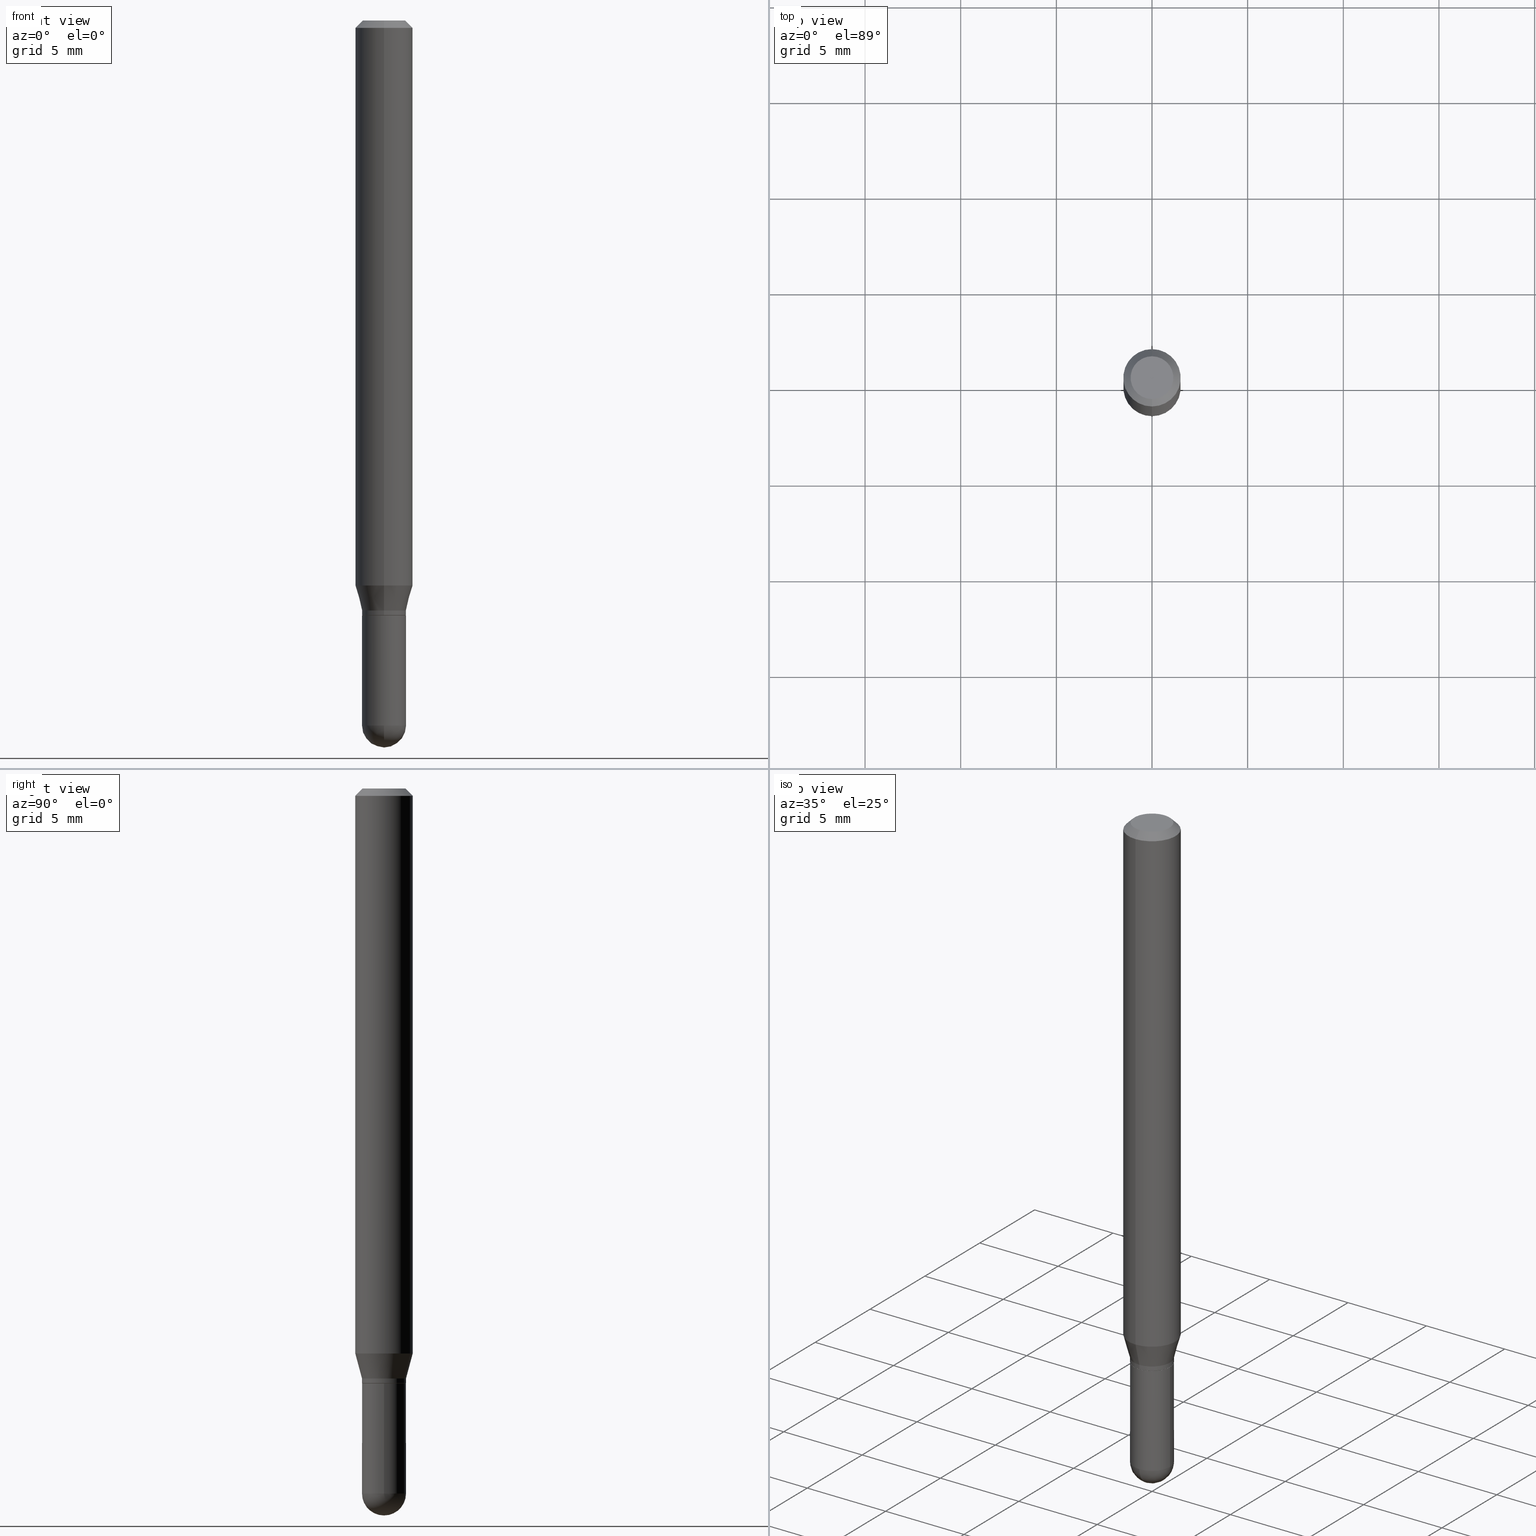
[diagram: canonical four-view strip — front | top / right | iso, engineering-drawing reading convention]
A machine part, canonical four-view strip (front | top / right | iso — engineering-drawing reading convention). The complete STEP part file that produces these views, byte-faithful:
ISO-10303-21;
HEADER;
FILE_DESCRIPTION (( 'STEP AP203' ),
    '1' );
FILE_NAME ('01962.STEP',
    '2024-03-07T19:48:51',
    ( '' ),
    ( '' ),
    'SwSTEP 2.0',
    'SolidWorks 2023',
    '' );
FILE_SCHEMA (( 'CONFIG_CONTROL_DESIGN' ));
ENDSEC;

DATA;
#1 = CYLINDRICAL_SURFACE ( 'NONE', #355, 0.04530000000000006244 ) ;
#2 = ORIENTED_EDGE ( 'NONE', *, *, #279, .T. ) ;
#3 = CARTESIAN_POINT ( 'NONE',  ( -3.536586717851222218E-16, -0.04404999999999999888, 1.299464798432338031E-16 ) ) ;
#4 = LINE ( 'NONE', #275, #257 ) ;
#5 = ORIENTED_EDGE ( 'NONE', *, *, #477, .T. ) ;
#6 = VERTEX_POINT ( 'NONE', #466 ) ;
#7 = CIRCLE ( 'NONE', #70, 0.04530000000000006244 ) ;
#8 = AXIS2_PLACEMENT_3D ( 'NONE', #100, #260, #132 ) ;
#9 = DIRECTION ( 'NONE',  ( 1.839019923739599526E-15, 0.2588190451025248473, 0.9659258262890670910 ) ) ;
#10 = DIRECTION ( 'NONE',  ( 6.982962677686265922E-15, 1.000000000000000000, -3.505890868245046092E-15 ) ) ;
#11 = EDGE_LOOP ( 'NONE', ( #365, #241, #356, #209 ) ) ;
#12 = AXIS2_PLACEMENT_3D ( 'NONE', #253, #219, #415 ) ;
#13 = CC_DESIGN_SECURITY_CLASSIFICATION ( #82, ( #249 ) ) ;
#14 = DIRECTION ( 'NONE',  ( -2.445468806185136597E-29, 3.491481338843145583E-15, 1.000000000000000000 ) ) ;
#15 = CARTESIAN_POINT ( 'NONE',  ( 0.000000000000000000, 0.000000000000000000, 0.000000000000000000 ) ) ;
#16 = ADVANCED_FACE ( 'NONE', ( #248 ), #92, .T. ) ;
#17 = CARTESIAN_POINT ( 'NONE',  ( 2.992922257712919643E-29, -4.273348619864226942E-15, -1.223899999999999988 ) ) ;
#18 = CC_DESIGN_APPROVAL ( #487, ( #323 ) ) ;
#19 = LINE ( 'NONE', #376, #81 ) ;
#20 = CC_DESIGN_PERSON_AND_ORGANIZATION_ASSIGNMENT ( #192, #197, ( #249 ) ) ;
#21 = CARTESIAN_POINT ( 'NONE',  ( 3.547886144013395202E-29, -5.065441126393634337E-15, -1.450799999999999645 ) ) ;
#22 = PLANE ( 'NONE',  #480 ) ;
#23 = EDGE_LOOP ( 'NONE', ( #2, #327, #459, #202 ) ) ;
#24 = DATE_AND_TIME ( #265, #72 ) ;
#25 = VECTOR ( 'NONE', #178, 39.37007874015748143 ) ;
#26 = AXIS2_PLACEMENT_3D ( 'NONE', #15, #14, #419 ) ;
#27 = LINE ( 'NONE', #423, #411 ) ;
#28 = CARTESIAN_POINT ( 'NONE',  ( 2.994232006293080857E-29, -4.274969751279546755E-15, -1.224399999999999933 ) ) ;
#29 = EDGE_CURVE ( 'NONE', #461, #384, #41, .T. ) ;
#30 = VERTEX_POINT ( 'NONE', #469 ) ;
#31 = VECTOR ( 'NONE', #383, 39.37007874015748143 ) ;
#32 = DIRECTION ( 'NONE',  ( -2.445397710362709294E-29, 3.491583152107384375E-15, 1.000000000000000000 ) ) ;
#33 =( NAMED_UNIT ( * ) PLANE_ANGLE_UNIT ( ) SI_UNIT ( $, .RADIAN. ) );
#34 = ORIENTED_EDGE ( 'NONE', *, *, #216, .F. ) ;
#35 = EDGE_CURVE ( 'NONE', #124, #436, #233, .T. ) ;
#36 = DIRECTION ( 'NONE',  ( 1.000000000000000000, -6.982962677686269866E-15, 0.000000000000000000 ) ) ;
#37 = VERTEX_POINT ( 'NONE', #393 ) ;
#38 = DIRECTION ( 'NONE',  ( 1.000000000000000000, -6.982962677686271444E-15, 0.000000000000000000 ) ) ;
#39 = DIRECTION ( 'NONE',  ( 1.000000000000000000, -6.982962677686266711E-15, 4.876176775795936353E-29 ) ) ;
#40 = ORIENTED_EDGE ( 'NONE', *, *, #216, .T. ) ;
#41 = LINE ( 'NONE', #203, #141 ) ;
#42 = VECTOR ( 'NONE', #74, 39.37007874015748143 ) ;
#43 = FACE_OUTER_BOUND ( 'NONE', #76, .T. ) ;
#44 = AXIS2_PLACEMENT_3D ( 'NONE', #188, #297, #138 ) ;
#45 = ORIENTED_EDGE ( 'NONE', *, *, #102, .F. ) ;
#46 = DIRECTION ( 'NONE',  ( -6.982962677686265133E-15, -1.000000000000000000, 3.491583152107384375E-15 ) ) ;
#47 = CARTESIAN_POINT ( 'NONE',  ( 3.599717260347271507E-16, 0.04404999999999999888, -1.776619958574267204E-16 ) ) ;
#48 = EDGE_CURVE ( 'NONE', #390, #424, #206, .T. ) ;
#49 = DIRECTION ( 'NONE',  ( -1.807323732225329350E-15, -0.2588190451025180194, 0.9659258262890689783 ) ) ;
#50 = CARTESIAN_POINT ( 'NONE',  ( 3.668096565544069372E-31, -5.237374728161084524E-17, -0.01500000000000002373 ) ) ;
#51 = DIRECTION ( 'NONE',  ( 6.982962677686265922E-15, 1.000000000000000000, -3.491583152107383980E-15 ) ) ;
#52 = CIRCLE ( 'NONE', #489, 0.04530000000000000693 ) ;
#53 = CARTESIAN_POINT ( 'NONE',  ( 4.195754854663390985E-16, 0.05904999999999999832, -2.061779851319410269E-16 ) ) ;
#54 = EDGE_CURVE ( 'NONE', #30, #369, #334, .T. ) ;
#55 = DIRECTION ( 'NONE',  ( -6.982962677686265922E-15, -1.000000000000000000, 4.626330217890369336E-15 ) ) ;
#56 = PERSON ( 'UNSPECIFIED', 'UNSPECIFIED', 'UNSPECIFIED', ('UNSPECIFIED'), ('UNSPECIFIED'), ('UNSPECIFIED') ) ;
#57 = FACE_OUTER_BOUND ( 'NONE', #488, .T. ) ;
#58 = AXIS2_PLACEMENT_3D ( 'NONE', #433, #465, #230 ) ;
#59 = VECTOR ( 'NONE', #458, 39.37007874015748143 ) ;
#60 = LOCAL_TIME ( 14, 48, 51.00000000000000000, #269 ) ;
#61 = DIRECTION ( 'NONE',  ( -1.000000000000000000, 6.982962677686265922E-15, -4.876176775795935793E-29 ) ) ;
#62 = EDGE_LOOP ( 'NONE', ( #504, #40, #214, #406 ) ) ;
#63 = EDGE_CURVE ( 'NONE', #342, #340, #322, .T. ) ;
#64 = DIRECTION ( 'NONE',  ( -2.445397710362709294E-29, 3.491583152107384375E-15, 1.000000000000000000 ) ) ;
#65 = ORIENTED_EDGE ( 'NONE', *, *, #242, .F. ) ;
#66 = APPROVAL_DATE_TIME ( #189, #487 ) ;
#67 = CARTESIAN_POINT ( 'NONE',  ( 2.994144956568101133E-29, -4.275094411440280753E-15, -1.224399999999999933 ) ) ;
#68 = FACE_OUTER_BOUND ( 'NONE', #213, .T. ) ;
#69 = APPROVAL_ROLE ( '' ) ;
#70 = AXIS2_PLACEMENT_3D ( 'NONE', #128, #123, #324 ) ;
#71 = AXIS2_PLACEMENT_3D ( 'NONE', #398, #32, #282 ) ;
#72 = LOCAL_TIME ( 14, 48, 51.00000000000000000, #155 ) ;
#73 = VERTEX_POINT ( 'NONE', #482 ) ;
#74 = DIRECTION ( 'NONE',  ( -2.445397710362709294E-29, 3.491583152107383980E-15, 1.000000000000000000 ) ) ;
#75 = ADVANCED_FACE ( 'NONE', ( #325 ), #484, .T. ) ;
#76 = EDGE_LOOP ( 'NONE', ( #199, #283, #434, #396 ) ) ;
#77 = COORDINATED_UNIVERSAL_TIME_OFFSET ( 5, 0, .BEHIND. ) ;
#78 = EDGE_LOOP ( 'NONE', ( #196, #483, #226, #183, #303 ) ) ;
#79 = CARTESIAN_POINT ( 'NONE',  ( 0.000000000000000000, 0.000000000000000000, 0.000000000000000000 ) ) ;
#80 = DIRECTION ( 'NONE',  ( -6.982962677686265133E-15, -1.000000000000000000, 3.015284761218829434E-15 ) ) ;
#81 = VECTOR ( 'NONE', #420, 39.37007874015748143 ) ;
#82 = SECURITY_CLASSIFICATION ( '', '', #463 ) ;
#83 = CARTESIAN_POINT ( 'NONE',  ( 3.544012240723413228E-29, -5.070988776393773069E-15, -1.450800000000000090 ) ) ;
#84 = ORIENTED_EDGE ( 'NONE', *, *, #332, .F. ) ;
#85 = DIRECTION ( 'NONE',  ( -6.982962677686265922E-15, -1.000000000000000000, 6.030569522437688845E-15 ) ) ;
#86 = CARTESIAN_POINT ( 'NONE',  ( 3.544012240723413228E-29, -5.070988776393773069E-15, -1.450800000000000090 ) ) ;
#87 = FACE_OUTER_BOUND ( 'NONE', #170, .T. ) ;
#88 = CARTESIAN_POINT ( 'NONE',  ( 0.000000000000000000, 0.000000000000000000, 0.000000000000000000 ) ) ;
#89 = CONICAL_SURFACE ( 'NONE', #447, 0.04530000000000006244, 0.2617993877991501850 ) ;
#90 = EDGE_CURVE ( 'NONE', #340, #436, #418, .T. ) ;
#91 = LOCAL_TIME ( 14, 48, 51.00000000000000000, #237 ) ;
#92 = SPHERICAL_SURFACE ( 'NONE', #372, 0.04529999999999984039 ) ;
#93 = DIRECTION ( 'NONE',  ( 1.000000000000000000, -6.982962677686265922E-15, 4.883557194083112340E-29 ) ) ;
#94 = LINE ( 'NONE', #53, #25 ) ;
#95 = DIRECTION ( 'NONE',  ( -6.982962677686266711E-15, -1.000000000000000000, 3.048937492928865273E-15 ) ) ;
#96 = AXIS2_PLACEMENT_3D ( 'NONE', #476, #64, #315 ) ;
#97 = AXIS2_PLACEMENT_3D ( 'NONE', #79, #387, #394 ) ;
#98 = FACE_OUTER_BOUND ( 'NONE', #498, .T. ) ;
#99 = MANIFOLD_SOLID_BREP ( 'Body-Move/Copy2[2]', #506 ) ;
#100 = CARTESIAN_POINT ( 'NONE',  ( 5.834170680494128639E-46, -8.330134590463305896E-32, -2.385775800709646480E-17 ) ) ;
#101 = DIRECTION ( 'NONE',  ( -4.851104656540964275E-15, -0.7071067811865500152, -0.7071067811865450192 ) ) ;
#102 = EDGE_CURVE ( 'NONE', #147, #166, #471, .T. ) ;
#103 = APPLICATION_CONTEXT ( 'configuration controlled 3d designs of mechanical parts and assemblies' ) ;
#104 = AXIS2_PLACEMENT_3D ( 'NONE', #67, #264, #425 ) ;
#105 = DIRECTION ( 'NONE',  ( 7.105427357600999492E-15, 1.000000000000000000, 0.000000000000000000 ) ) ;
#106 = ORIENTED_EDGE ( 'NONE', *, *, #410, .T. ) ;
#107 = PERSON_AND_ORGANIZATION ( #56, #287 ) ;
#108 = DIRECTION ( 'NONE',  ( -2.445468806185136597E-29, 3.491481338843145583E-15, 1.000000000000000000 ) ) ;
#109 = APPROVAL_STATUS ( 'not_yet_approved' ) ;
#110 = CARTESIAN_POINT ( 'NONE',  ( 3.200995024599552074E-16, 0.04479999999999572519, -1.224400000000000155 ) ) ;
#111 = ORIENTED_EDGE ( 'NONE', *, *, #165, .T. ) ;
#112 = ORIENTED_EDGE ( 'NONE', *, *, #175, .F. ) ;
#113 = DATE_TIME_ROLE ( 'classification_date' ) ;
#114 = AXIS2_PLACEMENT_3D ( 'NONE', #370, #317, #448 ) ;
#115 = AXIS2_PLACEMENT_3D ( 'NONE', #83, #302, #105 ) ;
#116 = CARTESIAN_POINT ( 'NONE',  ( -3.163282092991585987E-16, -0.04530000000000430210, -1.214099999999999957 ) ) ;
#117 = ORIENTED_EDGE ( 'NONE', *, *, #403, .T. ) ;
#118 = PERSON_AND_ORGANIZATION ( #56, #287 ) ;
#119 = ORIENTED_EDGE ( 'NONE', *, *, #472, .T. ) ;
#120 = DIRECTION ( 'NONE',  ( -2.445468806185136597E-29, 3.491481338843145583E-15, 1.000000000000000000 ) ) ;
#121 = AXIS2_PLACEMENT_3D ( 'NONE', #28, #191, #38 ) ;
#122 = CIRCLE ( 'NONE', #186, 0.04530000000000000693 ) ;
#123 = DIRECTION ( 'NONE',  ( -2.445397710362709294E-29, 3.491583152107384375E-15, 1.000000000000000000 ) ) ;
#124 = VERTEX_POINT ( 'NONE', #462 ) ;
#125 = ORIENTED_EDGE ( 'NONE', *, *, #242, .T. ) ;
#126 = ORIENTED_EDGE ( 'NONE', *, *, #252, .F. ) ;
#127 = ADVANCED_FACE ( 'NONE', ( #68 ), #479, .T. ) ;
#128 = CARTESIAN_POINT ( 'NONE',  ( 2.992922257712919643E-29, -4.273348619864226942E-15, -1.223899999999999988 ) ) ;
#129 = ORIENTED_EDGE ( 'NONE', *, *, #235, .T. ) ;
#130 = AXIS2_PLACEMENT_3D ( 'NONE', #449, #378, #495 ) ;
#131 = EDGE_CURVE ( 'NONE', #384, #342, #348, .T. ) ;
#132 = DIRECTION ( 'NONE',  ( -6.982962677686265133E-15, -1.000000000000000000, 3.491583152107384375E-15 ) ) ;
#133 = CARTESIAN_POINT ( 'NONE',  ( 4.195754854663673989E-16, 0.05904999999999592519, -1.162784301395928699 ) ) ;
#134 = CIRCLE ( 'NONE', #96, 0.05904999999999999832 ) ;
#135 = DIRECTION ( 'NONE',  ( -2.445397710362709294E-29, 3.491583152107384375E-15, 1.000000000000000000 ) ) ;
#136 = CARTESIAN_POINT ( 'NONE',  ( -0.04530000000000000693, 3.218758592993254334E-16, -2.228277595885472564E-30 ) ) ;
#137 = ADVANCED_FACE ( 'NONE', ( #409 ), #478, .T. ) ;
#138 = DIRECTION ( 'NONE',  ( -6.982962677686265922E-15, -1.000000000000000000, 3.505890868245046092E-15 ) ) ;
#139 = ORIENTED_EDGE ( 'NONE', *, *, #63, .F. ) ;
#140 = VERTEX_POINT ( 'NONE', #3 ) ;
#141 = VECTOR ( 'NONE', #408, 39.37007874015748143 ) ;
#142 = AXIS2_PLACEMENT_3D ( 'NONE', #17, #135, #294 ) ;
#143 = CC_DESIGN_DATE_AND_TIME_ASSIGNMENT ( #430, #392, ( #323 ) ) ;
#144 =( LENGTH_UNIT ( ) NAMED_UNIT ( * ) SI_UNIT ( $, .METRE. ) );
#145 = APPROVAL_DATE_TIME ( #305, #501 ) ;
#146 = CARTESIAN_POINT ( 'NONE',  ( -0.04529999999999999999, -4.348329579537264718E-15, -1.224399999999999933 ) ) ;
#147 = VERTEX_POINT ( 'NONE', #157 ) ;
#148 = VERTEX_POINT ( 'NONE', #47 ) ;
#149 = APPLICATION_PROTOCOL_DEFINITION ( 'international standard', 'config_control_design', 1994, #486 ) ;
#150 = ORIENTED_EDGE ( 'NONE', *, *, #328, .T. ) ;
#151 = CIRCLE ( 'NONE', #373, 0.04479999999999999954 ) ;
#152 = APPROVAL_PERSON_ORGANIZATION ( #351, #353, #346 ) ;
#153 = ORIENTED_EDGE ( 'NONE', *, *, #341, .T. ) ;
#154 = ADVANCED_FACE ( 'NONE', ( #164 ), #288, .T. ) ;
#155 = COORDINATED_UNIVERSAL_TIME_OFFSET ( 5, 0, .BEHIND. ) ;
#156 = DIRECTION ( 'NONE',  ( -6.982962677686265133E-15, -1.000000000000000000, 3.491583152107384375E-15 ) ) ;
#157 = CARTESIAN_POINT ( 'NONE',  ( -3.128367279603147534E-16, -0.04480000000000427390, -1.224399999999999711 ) ) ;
#158 = CARTESIAN_POINT ( 'NONE',  ( 3.218758592993555581E-16, 0.04529999999999576726, -1.223899999999999988 ) ) ;
#159 = CLOSED_SHELL ( 'NONE', ( #154, #16, #481, #137, #259 ) ) ;
#160 = AXIS2_PLACEMENT_3D ( 'NONE', #50, #333, #172 ) ;
#161 = ORIENTED_EDGE ( 'NONE', *, *, #460, .T. ) ;
#162 = DIRECTION ( 'NONE',  ( 1.000000000000000000, -6.982962677686269866E-15, 0.000000000000000000 ) ) ;
#163 = APPROVAL_PERSON_ORGANIZATION ( #107, #501, #69 ) ;
#164 = FACE_OUTER_BOUND ( 'NONE', #78, .T. ) ;
#165 = EDGE_CURVE ( 'NONE', #166, #384, #7, .T. ) ;
#166 = VERTEX_POINT ( 'NONE', #204 ) ;
#167 = CARTESIAN_POINT ( 'NONE',  ( 3.218758592993554101E-16, 0.04529999999999581584, -1.214100000000000179 ) ) ;
#168 = CARTESIAN_POINT ( 'NONE',  ( 3.544012240723413228E-29, -5.070988776393773069E-15, -1.450800000000000090 ) ) ;
#169 = ORIENTED_EDGE ( 'NONE', *, *, #35, .T. ) ;
#170 = EDGE_LOOP ( 'NONE', ( #84, #161, #413, #240 ) ) ;
#171 = CC_DESIGN_PERSON_AND_ORGANIZATION_ASSIGNMENT ( #435, #400, ( #82 ) ) ;
#172 = DIRECTION ( 'NONE',  ( 6.982962677686265922E-15, 1.000000000000000000, -3.505890868245046092E-15 ) ) ;
#173 = CIRCLE ( 'NONE', #8, 0.04404999999999999888 ) ;
#174 = DIRECTION ( 'NONE',  ( -6.982962677686265133E-15, -1.000000000000000000, 3.015284761218829434E-15 ) ) ;
#175 = EDGE_CURVE ( 'NONE', #424, #390, #364, .T. ) ;
#176 = CARTESIAN_POINT ( 'NONE',  ( 2.968957360151365244E-29, -4.239131104973575246E-15, -1.214099999999999957 ) ) ;
#177 = CARTESIAN_POINT ( 'NONE',  ( 3.075995059520799729E-16, 0.04404999999999999888, -1.657331168538785095E-16 ) ) ;
#178 = DIRECTION ( 'NONE',  ( -2.445397710362709294E-29, 3.491583152107383980E-15, 1.000000000000000000 ) ) ;
#179 = PRODUCT_DEFINITION_SHAPE ( 'NONE', 'NONE',  #323 ) ;
#180 = DIRECTION ( 'NONE',  ( 1.000000000000000000, -6.982962677686269866E-15, 0.000000000000000000 ) ) ;
#181 = ORIENTED_EDGE ( 'NONE', *, *, #279, .F. ) ;
#182 = FACE_OUTER_BOUND ( 'NONE', #23, .T. ) ;
#183 = ORIENTED_EDGE ( 'NONE', *, *, #422, .F. ) ;
#184 = AXIS2_PLACEMENT_3D ( 'NONE', #363, #93, #85 ) ;
#185 = APPROVAL_STATUS ( 'not_yet_approved' ) ;
#186 = AXIS2_PLACEMENT_3D ( 'NONE', #443, #108, #262 ) ;
#187 = LOCAL_TIME ( 14, 48, 51.00000000000000000, #77 ) ;
#188 = CARTESIAN_POINT ( 'NONE',  ( 3.668096565544069372E-31, -5.237374728161084524E-17, -0.01500000000000002373 ) ) ;
#189 = DATE_AND_TIME ( #473, #187 ) ;
#190 = CC_DESIGN_PERSON_AND_ORGANIZATION_ASSIGNMENT ( #118, #397, ( #323 ) ) ;
#191 = DIRECTION ( 'NONE',  ( -2.445468806185136597E-29, 3.491481338843145583E-15, 1.000000000000000000 ) ) ;
#192 = PERSON_AND_ORGANIZATION ( #56, #287 ) ;
#193 = ORIENTED_EDGE ( 'NONE', *, *, #403, .F. ) ;
#194 = CIRCLE ( 'NONE', #207, 0.04404999999999999888 ) ;
#195 = ADVANCED_FACE ( 'NONE', ( #43 ), #367, .T. ) ;
#196 = ORIENTED_EDGE ( 'NONE', *, *, #54, .T. ) ;
#197 = PERSON_AND_ORGANIZATION_ROLE ( 'design_supplier' ) ;
#198 = LINE ( 'NONE', #428, #31 ) ;
#199 = ORIENTED_EDGE ( 'NONE', *, *, #300, .T. ) ;
#200 = DIRECTION ( 'NONE',  ( 2.445397710362709294E-29, -3.491583152107384375E-15, -1.000000000000000000 ) ) ;
#201 = FACE_OUTER_BOUND ( 'NONE', #446, .T. ) ;
#202 = ORIENTED_EDGE ( 'NONE', *, *, #35, .F. ) ;
#203 = CARTESIAN_POINT ( 'NONE',  ( 3.183231456205547581E-16, 0.04479999999999572519, -1.224400000000000155 ) ) ;
#204 = CARTESIAN_POINT ( 'NONE',  ( -3.163282092991584508E-16, -0.04530000000000435761, -1.223899999999999766 ) ) ;
#205 = ADVANCED_FACE ( 'NONE', ( #357 ), #1, .T. ) ;
#206 = CIRCLE ( 'NONE', #121, 0.04529999999999999999 ) ;
#207 = AXIS2_PLACEMENT_3D ( 'NONE', #440, #319, #156 ) ;
#208 = ORIENTED_EDGE ( 'NONE', *, *, #494, .T. ) ;
#209 = ORIENTED_EDGE ( 'NONE', *, *, #410, .F. ) ;
#210 = CC_DESIGN_APPROVAL ( #353, ( #82 ) ) ;
#211 = CARTESIAN_POINT ( 'NONE',  ( 0.000000000000000000, 0.000000000000000000, 0.000000000000000000 ) ) ;
#212 = ADVANCED_FACE ( 'NONE', ( #87 ), #255, .T. ) ;
#213 = EDGE_LOOP ( 'NONE', ( #129, #389, #431, #45 ) ) ;
#214 = ORIENTED_EDGE ( 'NONE', *, *, #472, .F. ) ;
#215 = PLANE ( 'NONE',  #218 ) ;
#216 = EDGE_CURVE ( 'NONE', #281, #37, #270, .T. ) ;
#217 = DIRECTION ( 'NONE',  ( -6.982962677686265922E-15, -1.000000000000000000, 3.491583152107383980E-15 ) ) ;
#218 = AXIS2_PLACEMENT_3D ( 'NONE', #455, #421, #217 ) ;
#219 = DIRECTION ( 'NONE',  ( -2.445397710362709294E-29, 3.491583152107384375E-15, 1.000000000000000000 ) ) ;
#220 = CARTESIAN_POINT ( 'NONE',  ( 2.994144956568101133E-29, -4.275094411440280753E-15, -1.224399999999999933 ) ) ;
#221 = ADVANCED_FACE ( 'NONE', ( #490 ), #289, .T. ) ;
#222 = DIRECTION ( 'NONE',  ( -2.445397710362709294E-29, 3.491583152107384375E-15, 1.000000000000000000 ) ) ;
#223 = AXIS2_PLACEMENT_3D ( 'NONE', #261, #352, #429 ) ;
#224 = AXIS2_PLACEMENT_3D ( 'NONE', #331, #371, #55 ) ;
#225 = DIRECTION ( 'NONE',  ( 2.438088387897960049E-29, -3.491481338843145188E-15, -1.000000000000000000 ) ) ;
#226 = ORIENTED_EDGE ( 'NONE', *, *, #48, .F. ) ;
#227 = CARTESIAN_POINT ( 'NONE',  ( 3.547886144013395202E-29, -5.065441126393634337E-15, -1.450799999999999645 ) ) ;
#228 = EDGE_LOOP ( 'NONE', ( #111, #470, #181, #65 ) ) ;
#229 = PERSON_AND_ORGANIZATION ( #56, #287 ) ;
#230 = DIRECTION ( 'NONE',  ( -6.982962677686266711E-15, -1.000000000000000000, 3.048937492928865273E-15 ) ) ;
#231 = SHAPE_DEFINITION_REPRESENTATION ( #179, #475 ) ;
#232 = CIRCLE ( 'NONE', #142, 0.04530000000000006244 ) ;
#233 = LINE ( 'NONE', #116, #345 ) ;
#234 = APPROVAL_DATE_TIME ( #500, #353 ) ;
#235 = EDGE_CURVE ( 'NONE', #147, #461, #299, .T. ) ;
#236 = ORIENTED_EDGE ( 'NONE', *, *, #29, .F. ) ;
#237 = COORDINATED_UNIVERSAL_TIME_OFFSET ( 5, 0, .BEHIND. ) ;
#238 = AXIS2_PLACEMENT_3D ( 'NONE', #168, #326, #485 ) ;
#239 = LINE ( 'NONE', #385, #59 ) ;
#240 = ORIENTED_EDGE ( 'NONE', *, *, #494, .F. ) ;
#241 = ORIENTED_EDGE ( 'NONE', *, *, #90, .T. ) ;
#242 = EDGE_CURVE ( 'NONE', #166, #124, #19, .T. ) ;
#243 = UNCERTAINTY_MEASURE_WITH_UNIT (LENGTH_MEASURE( 1.000000000000000082E-05 ), #402, 'distance_accuracy_value', 'NONE');
#244 =( NAMED_UNIT ( * ) SI_UNIT ( $, .STERADIAN. ) SOLID_ANGLE_UNIT ( ) );
#245 = ORIENTED_EDGE ( 'NONE', *, *, #422, .T. ) ;
#246 = CARTESIAN_POINT ( 'NONE',  ( 3.668096565544069372E-31, -5.237374728161084524E-17, -0.01500000000000002373 ) ) ;
#247 = AXIS2_PLACEMENT_3D ( 'NONE', #343, #306, #80 ) ;
#248 = FACE_OUTER_BOUND ( 'NONE', #386, .T. ) ;
#249 = PRODUCT_DEFINITION_FORMATION_WITH_SPECIFIED_SOURCE ( 'ANY', '', #254, .NOT_KNOWN. ) ;
#250 = DIRECTION ( 'NONE',  ( -6.982962677686265922E-15, -1.000000000000000000, 6.030569522437688845E-15 ) ) ;
#251 = CARTESIAN_POINT ( 'NONE',  ( 2.968957360151365244E-29, -4.239131104973575246E-15, -1.214099999999999957 ) ) ;
#252 = EDGE_CURVE ( 'NONE', #369, #424, #456, .T. ) ;
#253 = CARTESIAN_POINT ( 'NONE',  ( 2.968957360151365244E-29, -4.239131104973575246E-15, -1.214099999999999957 ) ) ;
#254 = PRODUCT ( '01962', '01962', '', ( #274 ) ) ;
#255 = CONICAL_SURFACE ( 'NONE', #457, 0.05904999999999999832, 0.7853981633974483900 ) ;
#256 = DIRECTION ( 'NONE',  ( -2.445468806185136877E-29, 3.491481338843145188E-15, 1.000000000000000000 ) ) ;
#257 = VECTOR ( 'NONE', #388, 39.37007874015748143 ) ;
#258 = DIRECTION ( 'NONE',  ( -6.982962677686265133E-15, -1.000000000000000000, 3.015284761218829434E-15 ) ) ;
#259 = ADVANCED_FACE ( 'NONE', ( #380 ), #492, .T. ) ;
#260 = DIRECTION ( 'NONE',  ( -2.445397710362709294E-29, 3.491583152107384375E-15, 1.000000000000000000 ) ) ;
#261 = CARTESIAN_POINT ( 'NONE',  ( 2.843470068279305936E-29, -4.059958076288978365E-15, -1.162784301395928255 ) ) ;
#262 = DIRECTION ( 'NONE',  ( 1.000000000000000000, -6.982962677686269866E-15, 0.000000000000000000 ) ) ;
#263 = VECTOR ( 'NONE', #256, 39.37007874015748143 ) ;
#264 = DIRECTION ( 'NONE',  ( -2.445397710362709294E-29, 3.491583152107384375E-15, 1.000000000000000000 ) ) ;
#265 = CALENDAR_DATE ( 2024, 7, 3 ) ;
#266 = CALENDAR_DATE ( 2024, 7, 3 ) ;
#267 = ORIENTED_EDGE ( 'NONE', *, *, #460, .F. ) ;
#268 = VECTOR ( 'NONE', #9, 39.37007874015748143 ) ;
#269 = COORDINATED_UNIVERSAL_TIME_OFFSET ( 5, 0, .BEHIND. ) ;
#270 = CIRCLE ( 'NONE', #238, 0.04529999999999984039 ) ;
#271 = EDGE_CURVE ( 'NONE', #340, #6, #94, .T. ) ;
#272 = EDGE_LOOP ( 'NONE', ( #236, #150, #445, #307 ) ) ;
#273 = CARTESIAN_POINT ( 'NONE',  ( -3.128367279603147534E-16, -0.04480000000000427390, -1.224399999999999711 ) ) ;
#274 = MECHANICAL_CONTEXT ( 'NONE', #486, 'mechanical' ) ;
#275 = CARTESIAN_POINT ( 'NONE',  ( 4.123439461173743285E-16, 0.05904999999999994975, -0.01500000000000023016 ) ) ;
#276 = ORIENTED_EDGE ( 'NONE', *, *, #309, .T. ) ;
#277 = DIRECTION ( 'NONE',  ( -6.982962677686265133E-15, -1.000000000000000000, 3.491583152107384375E-15 ) ) ;
#278 = DIRECTION ( 'NONE',  ( -2.445468806185136597E-29, 3.491481338843145583E-15, 1.000000000000000000 ) ) ;
#279 = EDGE_CURVE ( 'NONE', #124, #342, #318, .T. ) ;
#280 = AXIS2_PLACEMENT_3D ( 'NONE', #227, #120, #36 ) ;
#281 = VERTEX_POINT ( 'NONE', #454 ) ;
#282 = DIRECTION ( 'NONE',  ( -6.982962677686265922E-15, -1.000000000000000000, 3.491583152107383980E-15 ) ) ;
#283 = ORIENTED_EDGE ( 'NONE', *, *, #271, .T. ) ;
#284 = CARTESIAN_POINT ( 'NONE',  ( 0.000000000000000000, 0.000000000000000000, 0.000000000000000000 ) ) ;
#285 = ORIENTED_EDGE ( 'NONE', *, *, #309, .F. ) ;
#286 = ORIENTED_EDGE ( 'NONE', *, *, #235, .F. ) ;
#287 = ORGANIZATION ( 'UNSPECIFIED', 'UNSPECIFIED', '' ) ;
#288 = CYLINDRICAL_SURFACE ( 'NONE', #292, 0.04530000000000000693 ) ;
#289 = CYLINDRICAL_SURFACE ( 'NONE', #130, 0.05904999999999999832 ) ;
#290 = FACE_OUTER_BOUND ( 'NONE', #444, .T. ) ;
#291 = ADVANCED_FACE ( 'NONE', ( #57 ), #89, .T. ) ;
#292 = AXIS2_PLACEMENT_3D ( 'NONE', #211, #329, #39 ) ;
#293 = AXIS2_PLACEMENT_3D ( 'NONE', #176, #496, #174 ) ;
#294 = DIRECTION ( 'NONE',  ( -6.982962677686265133E-15, -1.000000000000000000, 3.015284761218829434E-15 ) ) ;
#295 = FACE_OUTER_BOUND ( 'NONE', #474, .T. ) ;
#296 = DIRECTION ( 'NONE',  ( -2.445397710362709294E-29, 3.491583152107384375E-15, 1.000000000000000000 ) ) ;
#297 = DIRECTION ( 'NONE',  ( -2.445397710362709294E-29, 3.491583152107384375E-15, 1.000000000000000000 ) ) ;
#298 = ORIENTED_EDGE ( 'NONE', *, *, #90, .F. ) ;
#299 = CIRCLE ( 'NONE', #453, 0.04479999999999999954 ) ;
#300 = EDGE_CURVE ( 'NONE', #436, #340, #401, .T. ) ;
#301 = CC_DESIGN_APPROVAL ( #501, ( #249 ) ) ;
#302 = DIRECTION ( 'NONE',  ( 1.000000000000000000, -7.105427357601001070E-15, 4.926315508542082329E-29 ) ) ;
#303 = ORIENTED_EDGE ( 'NONE', *, *, #439, .T. ) ;
#304 = DIRECTION ( 'NONE',  ( -4.937700262164674260E-15, -0.7071067811865632269, 0.7071067811865319186 ) ) ;
#305 = DATE_AND_TIME ( #467, #91 ) ;
#306 = DIRECTION ( 'NONE',  ( -2.445397710362709294E-29, 3.491583152107384375E-15, 1.000000000000000000 ) ) ;
#307 = ORIENTED_EDGE ( 'NONE', *, *, #341, .F. ) ;
#308 = PERSON_AND_ORGANIZATION_ROLE ( 'design_owner' ) ;
#309 = EDGE_CURVE ( 'NONE', #342, #124, #432, .T. ) ;
#310 = DIRECTION ( 'NONE',  ( 1.000000000000000000, -6.982962677686265922E-15, 4.883557194083112340E-29 ) ) ;
#311 = EDGE_LOOP ( 'NONE', ( #126, #119, #5, #245, #112 ) ) ;
#312 = PERSON_AND_ORGANIZATION ( #56, #287 ) ;
#313 = CC_DESIGN_PERSON_AND_ORGANIZATION_ASSIGNMENT ( #229, #505, ( #249 ) ) ;
#314 = DIRECTION ( 'NONE',  ( -2.445397710362709294E-29, 3.491583152107384375E-15, 1.000000000000000000 ) ) ;
#315 = DIRECTION ( 'NONE',  ( -6.982962677686265922E-15, -1.000000000000000000, 3.505890868245046092E-15 ) ) ;
#316 = EDGE_LOOP ( 'NONE', ( #405, #153, #125, #285 ) ) ;
#317 = DIRECTION ( 'NONE',  ( -2.445468806185136597E-29, 3.491481338843145583E-15, 1.000000000000000000 ) ) ;
#318 = CIRCLE ( 'NONE', #293, 0.04530000000000006244 ) ;
#319 = DIRECTION ( 'NONE',  ( -2.445397710362709294E-29, 3.491583152107384375E-15, 1.000000000000000000 ) ) ;
#320 =( GEOMETRIC_REPRESENTATION_CONTEXT ( 3 ) GLOBAL_UNCERTAINTY_ASSIGNED_CONTEXT ( ( #243 ) ) GLOBAL_UNIT_ASSIGNED_CONTEXT ( ( #402, #33, #244 ) ) REPRESENTATION_CONTEXT ( 'NONE', 'WORKASPACE' ) );
#321 = ORIENTED_EDGE ( 'NONE', *, *, #332, .T. ) ;
#322 = LINE ( 'NONE', #167, #268 ) ;
#323 = PRODUCT_DEFINITION ( 'UNKNOWN', '', #249, #416 ) ;
#324 = DIRECTION ( 'NONE',  ( -6.982962677686265133E-15, -1.000000000000000000, 3.015284761218829434E-15 ) ) ;
#325 = FACE_OUTER_BOUND ( 'NONE', #316, .T. ) ;
#326 = DIRECTION ( 'NONE',  ( -1.000000000000000000, 6.982962677686265922E-15, -4.883557194083112340E-29 ) ) ;
#327 = ORIENTED_EDGE ( 'NONE', *, *, #63, .T. ) ;
#328 = EDGE_CURVE ( 'NONE', #461, #147, #151, .T. ) ;
#329 = DIRECTION ( 'NONE',  ( -2.445468806185136597E-29, 3.491481338843145583E-15, 1.000000000000000000 ) ) ;
#330 = CONICAL_SURFACE ( 'NONE', #104, 0.04479999999999999954, 0.7853981633974739252 ) ;
#331 = CARTESIAN_POINT ( 'NONE',  ( 2.843470068279305936E-29, -4.059958076288978365E-15, -1.162784301395928255 ) ) ;
#332 = EDGE_CURVE ( 'NONE', #140, #148, #173, .T. ) ;
#333 = DIRECTION ( 'NONE',  ( 2.445397710362709294E-29, -3.491583152107384375E-15, -1.000000000000000000 ) ) ;
#334 = CIRCLE ( 'NONE', #452, 0.04530000000000000693 ) ;
#335 = CIRCLE ( 'NONE', #115, 0.04529999999999984039 ) ;
#336 = DIRECTION ( 'NONE',  ( 2.445397710362709294E-29, -3.491583152107383980E-15, -1.000000000000000000 ) ) ;
#337 = ADVANCED_FACE ( 'NONE', ( #290 ), #379, .T. ) ;
#338 = CARTESIAN_POINT ( 'NONE',  ( 3.707256723828616017E-16, 0.04529999999999581584, -1.214100000000000179 ) ) ;
#339 = CARTESIAN_POINT ( 'NONE',  ( 0.04530000000000000693, -4.986533648135779220E-15, -1.450799999999999645 ) ) ;
#340 = VERTEX_POINT ( 'NONE', #133 ) ;
#341 = EDGE_CURVE ( 'NONE', #384, #166, #232, .T. ) ;
#342 = VERTEX_POINT ( 'NONE', #338 ) ;
#343 = CARTESIAN_POINT ( 'NONE',  ( 2.968957360151365244E-29, -4.239131104973575246E-15, -1.214099999999999957 ) ) ;
#344 = ORIENTED_EDGE ( 'NONE', *, *, #439, .F. ) ;
#345 = VECTOR ( 'NONE', #49, 39.37007874015749564 ) ;
#346 = APPROVAL_ROLE ( '' ) ;
#347 = CARTESIAN_POINT ( 'NONE',  ( -4.123439461173455844E-16, -0.05905000000000406452, -1.162784301395928033 ) ) ;
#348 = LINE ( 'NONE', #503, #42 ) ;
#349 = APPLICATION_PROTOCOL_DEFINITION ( 'international standard', 'config_control_design', 1994, #103 ) ;
#350 = ORIENTED_EDGE ( 'NONE', *, *, #48, .T. ) ;
#351 = PERSON_AND_ORGANIZATION ( #56, #287 ) ;
#352 = DIRECTION ( 'NONE',  ( -2.445397710362709294E-29, 3.491583152107384375E-15, 1.000000000000000000 ) ) ;
#353 = APPROVAL ( #185, 'UNSPECIFIED' ) ;
#354 = APPROVAL_STATUS ( 'not_yet_approved' ) ;
#355 = AXIS2_PLACEMENT_3D ( 'NONE', #284, #314, #277 ) ;
#356 = ORIENTED_EDGE ( 'NONE', *, *, #382, .T. ) ;
#357 = FACE_OUTER_BOUND ( 'NONE', #228, .T. ) ;
#358 = PERSON_AND_ORGANIZATION ( #56, #287 ) ;
#359 = ADVANCED_FACE ( 'NONE', ( #98 ), #417, .F. ) ;
#360 = CARTESIAN_POINT ( 'NONE',  ( 3.163282092992178619E-16, 0.04529999999999572563, -1.224400000000000155 ) ) ;
#361 = ORIENTED_EDGE ( 'NONE', *, *, #427, .T. ) ;
#362 = CARTESIAN_POINT ( 'NONE',  ( 3.547886144013395202E-29, -5.065441126393634337E-15, -1.450799999999999645 ) ) ;
#363 = CARTESIAN_POINT ( 'NONE',  ( 3.544012240723413228E-29, -5.070988776393773069E-15, -1.450800000000000090 ) ) ;
#364 = CIRCLE ( 'NONE', #114, 0.04529999999999999999 ) ;
#365 = ORIENTED_EDGE ( 'NONE', *, *, #271, .F. ) ;
#366 = DIRECTION ( 'NONE',  ( -2.445468806185136597E-29, 3.491481338843145583E-15, 1.000000000000000000 ) ) ;
#367 = CYLINDRICAL_SURFACE ( 'NONE', #71, 0.05904999999999999832 ) ;
#368 = ADVANCED_FACE ( 'NONE', ( #295 ), #215, .F. ) ;
#369 = VERTEX_POINT ( 'NONE', #497 ) ;
#370 = CARTESIAN_POINT ( 'NONE',  ( 2.994232006293080857E-29, -4.274969751279546755E-15, -1.224399999999999933 ) ) ;
#371 = DIRECTION ( 'NONE',  ( -2.445397710362709294E-29, 3.491583152107384375E-15, 1.000000000000000000 ) ) ;
#372 = AXIS2_PLACEMENT_3D ( 'NONE', #86, #310, #250 ) ;
#373 = AXIS2_PLACEMENT_3D ( 'NONE', #220, #491, #95 ) ;
#374 = CARTESIAN_POINT ( 'NONE',  ( 2.994144956568101133E-29, -4.275094411440280753E-15, -1.224399999999999933 ) ) ;
#375 = EDGE_CURVE ( 'NONE', #73, #6, #134, .T. ) ;
#376 = CARTESIAN_POINT ( 'NONE',  ( -3.163282092991882303E-16, -0.04530000000000006244, 1.581687167904647274E-16 ) ) ;
#377 = PRODUCT_RELATED_PRODUCT_CATEGORY ( 'detail', '', ( #254 ) ) ;
#378 = DIRECTION ( 'NONE',  ( -2.445397710362709294E-29, 3.491583152107384375E-15, 1.000000000000000000 ) ) ;
#379 = CONICAL_SURFACE ( 'NONE', #160, 0.05904999999999999832, 0.7853981633974483900 ) ;
#380 = FACE_OUTER_BOUND ( 'NONE', #311, .T. ) ;
#381 = LOCAL_TIME ( 14, 48, 51.00000000000000000, #437 ) ;
#382 = EDGE_CURVE ( 'NONE', #436, #73, #239, .T. ) ;
#383 = DIRECTION ( 'NONE',  ( -2.445468806185136877E-29, 3.491481338843145188E-15, 1.000000000000000000 ) ) ;
#384 = VERTEX_POINT ( 'NONE', #158 ) ;
#385 = CARTESIAN_POINT ( 'NONE',  ( -4.123439461173739834E-16, -0.05904999999999999832, 2.061779851319410269E-16 ) ) ;
#386 = EDGE_LOOP ( 'NONE', ( #34, #361, #344, #441 ) ) ;
#387 = DIRECTION ( 'NONE',  ( 0.000000000000000000, 0.000000000000000000, 1.000000000000000000 ) ) ;
#388 = DIRECTION ( 'NONE',  ( 4.937700262164548042E-15, 0.7071067811865451302, -0.7071067811865499042 ) ) ;
#389 = ORIENTED_EDGE ( 'NONE', *, *, #29, .T. ) ;
#390 = VERTEX_POINT ( 'NONE', #404 ) ;
#391 = APPROVAL_PERSON_ORGANIZATION ( #312, #487, #508 ) ;
#392 = DATE_TIME_ROLE ( 'creation_date' ) ;
#393 = CARTESIAN_POINT ( 'NONE',  ( -3.163282092991518934E-16, -0.04530000000000499599, -1.450799999999999423 ) ) ;
#394 = DIRECTION ( 'NONE',  ( 1.000000000000000000, 0.000000000000000000, 0.000000000000000000 ) ) ;
#395 = CC_DESIGN_DATE_AND_TIME_ASSIGNMENT ( #24, #113, ( #82 ) ) ;
#396 = ORIENTED_EDGE ( 'NONE', *, *, #382, .F. ) ;
#397 = PERSON_AND_ORGANIZATION_ROLE ( 'creator' ) ;
#398 = CARTESIAN_POINT ( 'NONE',  ( 0.000000000000000000, 0.000000000000000000, 0.000000000000000000 ) ) ;
#399 = VECTOR ( 'NONE', #304, 39.37007874015748143 ) ;
#400 = PERSON_AND_ORGANIZATION_ROLE ( 'classification_officer' ) ;
#401 = CIRCLE ( 'NONE', #224, 0.05904999999999999832 ) ;
#402 =( CONVERSION_BASED_UNIT ( 'INCH', #464 ) LENGTH_UNIT ( ) NAMED_UNIT ( #509 ) );
#403 = EDGE_CURVE ( 'NONE', #148, #140, #194, .T. ) ;
#404 = CARTESIAN_POINT ( 'NONE',  ( 0.04529999999999999999, -4.591297960578735035E-15, -1.224399999999999933 ) ) ;
#405 = ORIENTED_EDGE ( 'NONE', *, *, #131, .F. ) ;
#406 = ORIENTED_EDGE ( 'NONE', *, *, #54, .F. ) ;
#407 = ORIENTED_EDGE ( 'NONE', *, *, #175, .T. ) ;
#408 = DIRECTION ( 'NONE',  ( 5.024295867788190974E-15, 0.7071067811865681119, 0.7071067811865270336 ) ) ;
#409 = FACE_OUTER_BOUND ( 'NONE', #62, .T. ) ;
#410 = EDGE_CURVE ( 'NONE', #6, #73, #493, .T. ) ;
#411 = VECTOR ( 'NONE', #101, 39.37007874015748143 ) ;
#412 = DIRECTION ( 'NONE',  ( -2.445397710362709294E-29, 3.491583152107384375E-15, 1.000000000000000000 ) ) ;
#413 = ORIENTED_EDGE ( 'NONE', *, *, #375, .T. ) ;
#414 = CC_DESIGN_PERSON_AND_ORGANIZATION_ASSIGNMENT ( #358, #308, ( #254 ) ) ;
#415 = DIRECTION ( 'NONE',  ( -6.982962677686265133E-15, -1.000000000000000000, 3.015284761218829434E-15 ) ) ;
#416 = DESIGN_CONTEXT ( 'detailed design', #103, 'design' ) ;
#417 = PLANE ( 'NONE',  #499 ) ;
#418 = CIRCLE ( 'NONE', #223, 0.05904999999999999832 ) ;
#419 = DIRECTION ( 'NONE',  ( 1.000000000000000000, -6.982962677686266711E-15, 4.876176775795936353E-29 ) ) ;
#420 = DIRECTION ( 'NONE',  ( -2.445397710362709294E-29, 3.491583152107383980E-15, 1.000000000000000000 ) ) ;
#421 = DIRECTION ( 'NONE',  ( -2.445397710362709294E-29, 3.491583152107383980E-15, 1.000000000000000000 ) ) ;
#422 = EDGE_CURVE ( 'NONE', #507, #390, #198, .T. ) ;
#423 = CARTESIAN_POINT ( 'NONE',  ( -4.051124067684085231E-16, -0.05905000000000005383, -0.01499999999999981730 ) ) ;
#424 = VERTEX_POINT ( 'NONE', #146 ) ;
#425 = DIRECTION ( 'NONE',  ( -6.982962677686266711E-15, -1.000000000000000000, 3.048937492928865273E-15 ) ) ;
#426 = CALENDAR_DATE ( 2024, 7, 3 ) ;
#427 = EDGE_CURVE ( 'NONE', #281, #30, #335, .T. ) ;
#428 = CARTESIAN_POINT ( 'NONE',  ( 0.04530000000000000693, -3.163282092991879344E-16, 2.208908079435559539E-30 ) ) ;
#429 = DIRECTION ( 'NONE',  ( -6.982962677686265922E-15, -1.000000000000000000, 4.626330217890369336E-15 ) ) ;
#430 = DATE_AND_TIME ( #426, #381 ) ;
#431 = ORIENTED_EDGE ( 'NONE', *, *, #165, .F. ) ;
#432 = CIRCLE ( 'NONE', #12, 0.04530000000000006244 ) ;
#433 = CARTESIAN_POINT ( 'NONE',  ( 2.994144956568101133E-29, -4.275094411440280753E-15, -1.224399999999999933 ) ) ;
#434 = ORIENTED_EDGE ( 'NONE', *, *, #375, .F. ) ;
#435 = PERSON_AND_ORGANIZATION ( #56, #287 ) ;
#436 = VERTEX_POINT ( 'NONE', #347 ) ;
#437 = COORDINATED_UNIVERSAL_TIME_OFFSET ( 5, 0, .BEHIND. ) ;
#438 = MANIFOLD_SOLID_BREP ( 'Body-Move/Copy2[1]', #159 ) ;
#439 = EDGE_CURVE ( 'NONE', #507, #30, #442, .T. ) ;
#440 = CARTESIAN_POINT ( 'NONE',  ( 5.834170680494128639E-46, -8.330134590463305896E-32, -2.385775800709646480E-17 ) ) ;
#441 = ORIENTED_EDGE ( 'NONE', *, *, #477, .F. ) ;
#442 = CIRCLE ( 'NONE', #280, 0.04530000000000000693 ) ;
#443 = CARTESIAN_POINT ( 'NONE',  ( 3.547886144013395202E-29, -5.065441126393634337E-15, -1.450799999999999645 ) ) ;
#444 = EDGE_LOOP ( 'NONE', ( #267, #193, #208, #106 ) ) ;
#445 = ORIENTED_EDGE ( 'NONE', *, *, #102, .T. ) ;
#446 = EDGE_LOOP ( 'NONE', ( #350, #407 ) ) ;
#447 = AXIS2_PLACEMENT_3D ( 'NONE', #251, #296, #258 ) ;
#448 = DIRECTION ( 'NONE',  ( 1.000000000000000000, -6.982962677686271444E-15, 0.000000000000000000 ) ) ;
#449 = CARTESIAN_POINT ( 'NONE',  ( 0.000000000000000000, 0.000000000000000000, 0.000000000000000000 ) ) ;
#450 = ADVANCED_FACE ( 'NONE', ( #502 ), #330, .T. ) ;
#451 = DIRECTION ( 'NONE',  ( -6.982962677686266711E-15, -1.000000000000000000, 3.048937492928865273E-15 ) ) ;
#452 = AXIS2_PLACEMENT_3D ( 'NONE', #362, #366, #162 ) ;
#453 = AXIS2_PLACEMENT_3D ( 'NONE', #374, #222, #451 ) ;
#454 = CARTESIAN_POINT ( 'NONE',  ( 3.652855025998608587E-29, -5.231926706043435391E-15, -1.496099999999999985 ) ) ;
#455 = CARTESIAN_POINT ( 'NONE',  ( 2.994144956568101133E-29, -4.275094411440280753E-15, -1.224399999999999933 ) ) ;
#456 = LINE ( 'NONE', #136, #263 ) ;
#457 = AXIS2_PLACEMENT_3D ( 'NONE', #246, #200, #10 ) ;
#458 = DIRECTION ( 'NONE',  ( -2.445397710362709294E-29, 3.491583152107383980E-15, 1.000000000000000000 ) ) ;
#459 = ORIENTED_EDGE ( 'NONE', *, *, #300, .F. ) ;
#460 = EDGE_CURVE ( 'NONE', #140, #73, #27, .T. ) ;
#461 = VERTEX_POINT ( 'NONE', #110 ) ;
#462 = CARTESIAN_POINT ( 'NONE',  ( -3.163282092991585987E-16, -0.04530000000000430210, -1.214099999999999957 ) ) ;
#463 = SECURITY_CLASSIFICATION_LEVEL ( 'unclassified' ) ;
#464 = LENGTH_MEASURE_WITH_UNIT ( LENGTH_MEASURE( 0.02539999999999999897 ), #144 );
#465 = DIRECTION ( 'NONE',  ( -2.445397710362709294E-29, 3.491583152107384375E-15, 1.000000000000000000 ) ) ;
#466 = CARTESIAN_POINT ( 'NONE',  ( 4.195754854663677441E-16, 0.05904999999999994975, -0.01500000000000023016 ) ) ;
#467 = CALENDAR_DATE ( 2024, 7, 3 ) ;
#468 = CONICAL_SURFACE ( 'NONE', #247, 0.04530000000000006244, 0.2617993877991501850 ) ;
#469 = CARTESIAN_POINT ( 'NONE',  ( 3.218758592993602912E-16, 0.04529999999999485133, -1.450800000000000090 ) ) ;
#470 = ORIENTED_EDGE ( 'NONE', *, *, #131, .T. ) ;
#471 = LINE ( 'NONE', #273, #399 ) ;
#472 = EDGE_CURVE ( 'NONE', #369, #37, #52, .T. ) ;
#473 = CALENDAR_DATE ( 2024, 7, 3 ) ;
#474 = EDGE_LOOP ( 'NONE', ( #286, #512 ) ) ;
#475 = ADVANCED_BREP_SHAPE_REPRESENTATION ( '01962', ( #438, #99, #97 ), #320 ) ;
#476 = CARTESIAN_POINT ( 'NONE',  ( 3.668096565544069372E-31, -5.237374728161084524E-17, -0.01500000000000002373 ) ) ;
#477 = EDGE_CURVE ( 'NONE', #37, #507, #122, .T. ) ;
#478 = SPHERICAL_SURFACE ( 'NONE', #184, 0.04529999999999984039 ) ;
#479 = CONICAL_SURFACE ( 'NONE', #58, 0.04479999999999999954, 0.7853981633974739252 ) ;
#480 = AXIS2_PLACEMENT_3D ( 'NONE', #360, #225, #61 ) ;
#481 = ADVANCED_FACE ( 'NONE', ( #201 ), #22, .F. ) ;
#482 = CARTESIAN_POINT ( 'NONE',  ( -4.123439461173736383E-16, -0.05905000000000005383, -0.01499999999999981730 ) ) ;
#483 = ORIENTED_EDGE ( 'NONE', *, *, #252, .T. ) ;
#484 = CYLINDRICAL_SURFACE ( 'NONE', #511, 0.04530000000000006244 ) ;
#485 = DIRECTION ( 'NONE',  ( -6.982962677686266711E-15, -1.000000000000000000, 0.000000000000000000 ) ) ;
#486 = APPLICATION_CONTEXT ( 'configuration controlled 3d designs of mechanical parts and assemblies' ) ;
#487 = APPROVAL ( #109, 'UNSPECIFIED' ) ;
#488 = EDGE_LOOP ( 'NONE', ( #139, #276, #169, #298 ) ) ;
#489 = AXIS2_PLACEMENT_3D ( 'NONE', #21, #278, #180 ) ;
#490 = FACE_OUTER_BOUND ( 'NONE', #11, .T. ) ;
#491 = DIRECTION ( 'NONE',  ( -2.445397710362709294E-29, 3.491583152107384375E-15, 1.000000000000000000 ) ) ;
#492 = CYLINDRICAL_SURFACE ( 'NONE', #26, 0.04530000000000000693 ) ;
#493 = CIRCLE ( 'NONE', #44, 0.05904999999999999832 ) ;
#494 = EDGE_CURVE ( 'NONE', #148, #6, #4, .T. ) ;
#495 = DIRECTION ( 'NONE',  ( -6.982962677686265922E-15, -1.000000000000000000, 3.491583152107383980E-15 ) ) ;
#496 = DIRECTION ( 'NONE',  ( -2.445397710362709294E-29, 3.491583152107384375E-15, 1.000000000000000000 ) ) ;
#497 = CARTESIAN_POINT ( 'NONE',  ( -0.04530000000000000693, -4.348329579537264718E-15, -1.450799999999999645 ) ) ;
#498 = EDGE_LOOP ( 'NONE', ( #117, #321 ) ) ;
#499 = AXIS2_PLACEMENT_3D ( 'NONE', #177, #336, #51 ) ;
#500 = DATE_AND_TIME ( #266, #60 ) ;
#501 = APPROVAL ( #354, 'UNSPECIFIED' ) ;
#502 = FACE_OUTER_BOUND ( 'NONE', #272, .T. ) ;
#503 = CARTESIAN_POINT ( 'NONE',  ( 3.218758592993257292E-16, 0.04530000000000006244, -1.581687167904647274E-16 ) ) ;
#504 = ORIENTED_EDGE ( 'NONE', *, *, #427, .F. ) ;
#505 = PERSON_AND_ORGANIZATION_ROLE ( 'creator' ) ;
#506 = CLOSED_SHELL ( 'NONE', ( #205, #127, #212, #195, #510, #291, #221, #337, #359, #368, #450, #75 ) ) ;
#507 = VERTEX_POINT ( 'NONE', #339 ) ;
#508 = APPROVAL_ROLE ( '' ) ;
#509 = DIMENSIONAL_EXPONENTS ( 1.000000000000000000, 0.000000000000000000, 0.000000000000000000, 0.000000000000000000, 0.000000000000000000, 0.000000000000000000, 0.000000000000000000 ) ;
#510 = ADVANCED_FACE ( 'NONE', ( #182 ), #468, .T. ) ;
#511 = AXIS2_PLACEMENT_3D ( 'NONE', #88, #412, #46 ) ;
#512 = ORIENTED_EDGE ( 'NONE', *, *, #328, .F. ) ;
ENDSEC;
END-ISO-10303-21;
